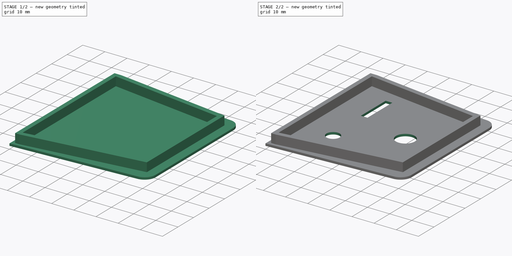
[diagram: build sequence overview — one tinted view per stage of 2, left to right]
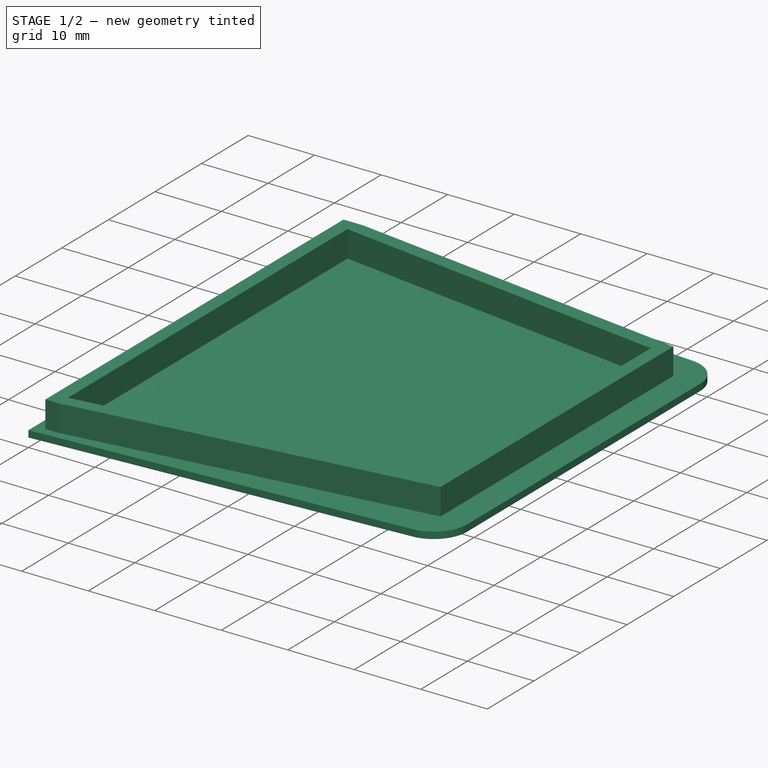
[diagram: stage 1 of 2 — iso view after this stage's code; geometry added in this stage tinted green]
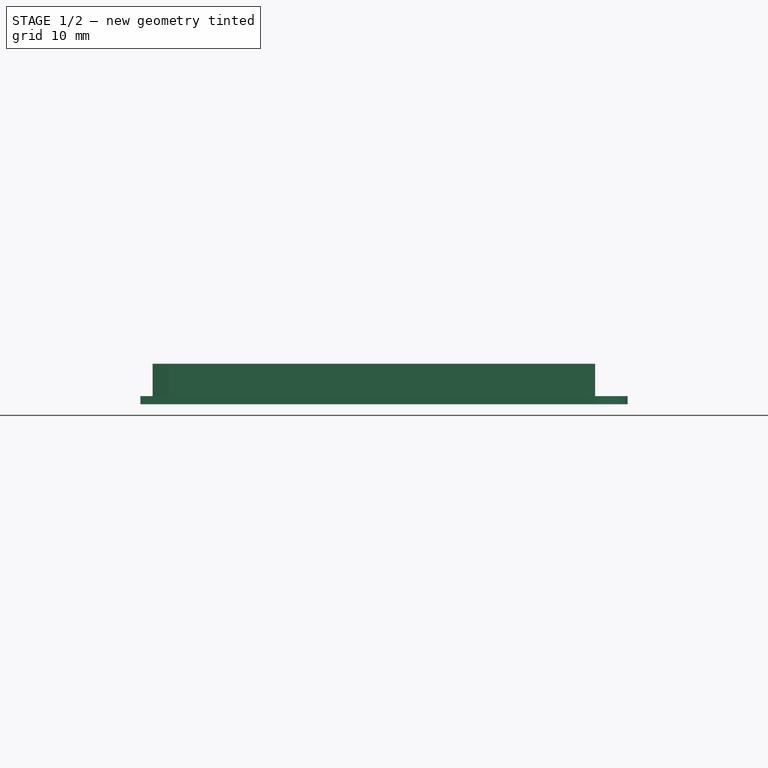
[diagram: stage 1 of 2 — front view after this stage's code; geometry added in this stage tinted green]
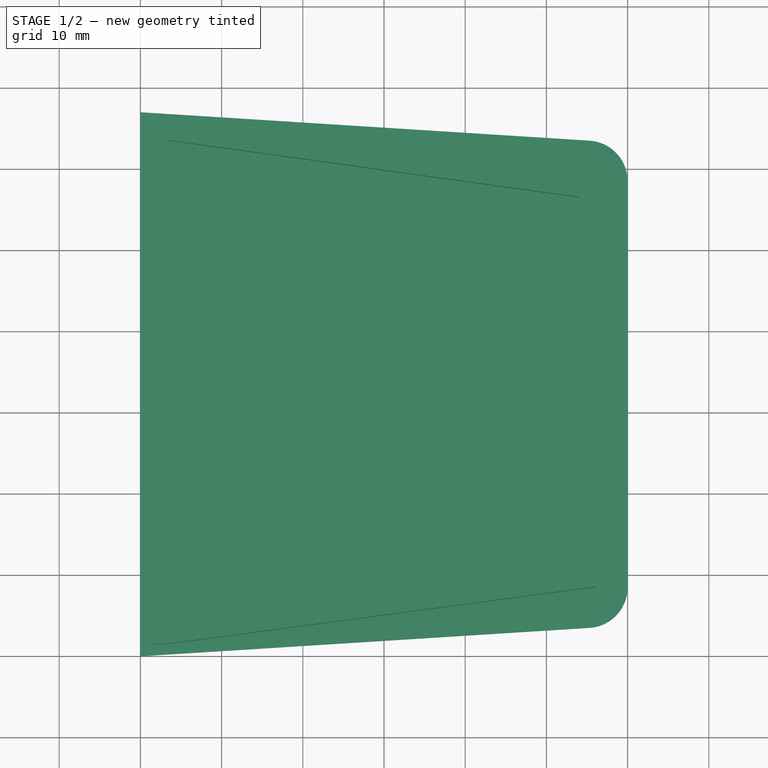
[diagram: stage 1 of 2 — top view after this stage's code; geometry added in this stage tinted green]
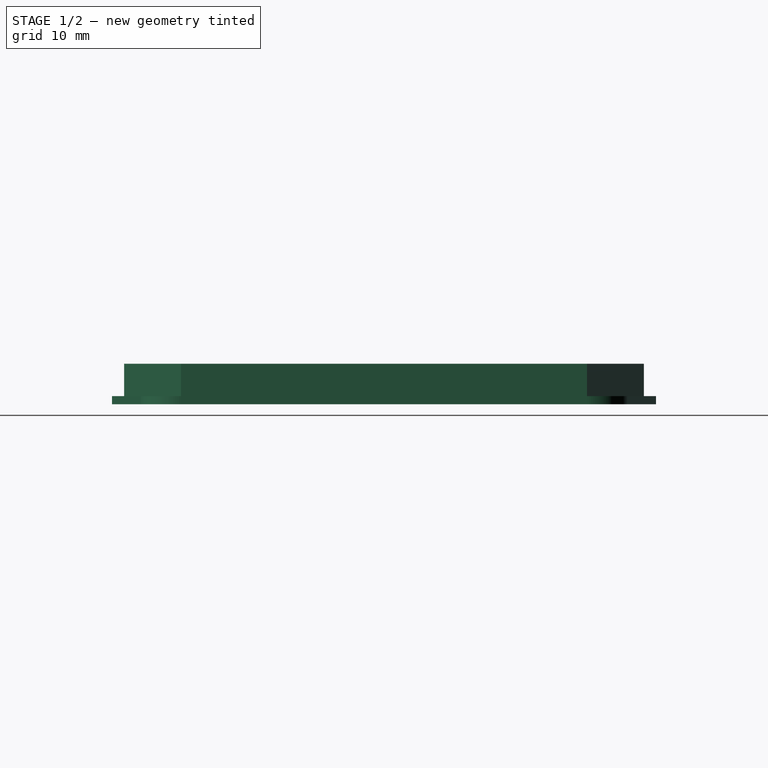
[diagram: stage 1 of 2 — right view after this stage's code; geometry added in this stage tinted green]
FCSTD DOCUMENT  (FreeCAD 2023.1231R38924 (Git))
Label: body-top
License: All rights reserved
LicenseURL: http://en.wikipedia.org/wiki/All_rights_reserved
objects: Sketcher::SketchObject×3, PartDesign::Pad×2, PartDesign::Pocket×1, PartDesign::Body×1
note: 16 computed .brp shape members not serialized (recipe doc carries the construction recipe); baked Part::Feature solids carry a one-line shape summary decoded from their .brp

FEATURE [Sketcher::SketchObject] Sketch
  ArcFitTolerance = 0
  AttachmentSupport = -> [XY_Plane]
  ExternalBSplineMaxDegree = 0
  ExternalBSplineTolerance = 0
  FullyConstrained = true
  InternalTolerance = 1e-06
  InvalidShape = false
  MakeInternals = false
  MapMode = 5
  Support = -> [XY_Plane]
  TreeRank = 0
  ValidateShape = false
  sketch-geometry (6):
    g0: LineSegment StartX=0 StartY=67 StartZ=0 EndX=0 EndY=0 EndZ=0
    g1: LineSegment StartX=0 StartY=0 StartZ=0 EndX=55.3157 EndY=3.5 EndZ=0
    g2: LineSegment StartX=60 StartY=8.49002 StartZ=0 EndX=60 EndY=58.51 EndZ=0
    g3: LineSegment StartX=55.3157 StartY=63.5 StartZ=0 EndX=0 EndY=67 EndZ=0
    g4: ArcOfCircle CenterX=55 CenterY=58.51 CenterZ=0 NormalX=0 NormalY=0 NormalZ=1 AngleXU=0 Radius=5 StartAngle=2e-16 EndAngle=1.50761
    g5: ArcOfCircle CenterX=55 CenterY=8.49002 CenterZ=0 NormalX=0 NormalY=0 NormalZ=1 AngleXU=0 Radius=5 StartAngle=4.77558 EndAngle=6.28319
  constraints (16):
    c: DistanceY(g-1,g0) = 0
    c: Coincident(g1,g0)
    c: Vertical(g0)
    c: Vertical(g2)
    c: DistanceX(g-1,g0) = 0
    c: Coincident(g3,g0)
    c: Distance(g0) = 67
    c: Tangent(g3,g4) = -1.5708
    c: Tangent(g2,g4) = -1.5708
    c: Tangent(g2,g5) = -1.5708
    c: Tangent(g1,g5) = -1.5708
    c: Radius(g4) = 5
    c: Radius(g5) = 5
    c: DistanceY(g1,g3) = 60
    c: DistanceX(g0,g2) = 60
    c: DistanceY(g0,g1) = 3.5
FEATURE [PartDesign::Pad] Pad001
  AddSubType = 0
  AllowMultiFace = false
  AutoTaperInnerAngle = true
  CheckUpToFaceLimits = true
  ClaimChildren = false
  Direction = (0,0,1)
  Fit = 0
  FitJoin = 0
  InnerFit = 0
  InnerFitJoin = 0
  InvalidShape = false
  Length = 1
  Length2 = 100
  NewSolid = false
  Profile = -> Sketch
  Suppress = false
  TaperInnerAngle = 0
  TaperInnerAngleRev = 0
  TreeRank = 0
  Type = 0
  ValidateShape = false
  _ProfileBasedVersion = 0
FEATURE [Sketcher::SketchObject] Sketch001
  ArcFitTolerance = 0
  AttachmentSupport = -> [XY_Plane]
  ExternalBSplineMaxDegree = 0
  ExternalBSplineTolerance = 0
  FullyConstrained = true
  InternalTolerance = 1e-06
  InvalidShape = false
  MakeInternals = false
  MapMode = 5
  Support = -> [XY_Plane]
  TreeRank = 0
  ValidateShape = false
  sketch-geometry (10):
    g0: LineSegment StartX=1.5 StartY=65.5 StartZ=0 EndX=4.5 EndY=65.5 EndZ=0
    g1: LineSegment StartX=3.5 StartY=63.5 StartZ=0 EndX=3.5 EndY=3.5 EndZ=0
    g2: LineSegment StartX=3.5 StartY=1.5 StartZ=0 EndX=1.5 EndY=1.5 EndZ=0
    g3: LineSegment StartX=1.5 StartY=1.5 StartZ=0 EndX=1.5 EndY=65.5 EndZ=0
    g4: LineSegment StartX=54 StartY=56.5 StartZ=0 EndX=54 EndY=10.5 EndZ=0
    g5: LineSegment StartX=56 StartY=8.5 StartZ=0 EndX=56 EndY=58.5 EndZ=0
    g6: LineSegment StartX=4.5 StartY=65.5 StartZ=0 EndX=56 EndY=58.5 EndZ=0
    g7: LineSegment StartX=3.5 StartY=63.5 StartZ=0 EndX=54 EndY=56.5 EndZ=0
    g8: LineSegment StartX=3.5 StartY=1.5 StartZ=0 EndX=56 EndY=8.5 EndZ=0
    g9: LineSegment StartX=3.5 StartY=3.5 StartZ=0 EndX=54 EndY=10.5 EndZ=0
  constraints (30):
    c: Coincident(g2,g3)
    c: Coincident(g3,g0)
    c: Horizontal(g0)
    c: Horizontal(g2)
    c: Vertical(g1)
    c: Vertical(g3)
    c: Distance(g0) = 3
    c: DistanceX(g-1,g2) = 1.5
    c: DistanceY(g-1,g2) = 1.5
    c: Vertical(g4)
    c: Vertical(g5)
    c: DistanceX(g-1,g5) = 56
    c: DistanceY(g-1,g8) = 8.5
    c: DistanceY(g7,g0) = 2
    c: Coincident(g6,g0)
    c: Coincident(g1,g7)
    c: Coincident(g7,g4)
    c: DistanceY(g4,g6) = 2
    c: Distance(g5) = 50
    c: Distance(g3) = 64
    c: Distance(g2) = 2
    c: Coincident(g2,g8)
    c: Coincident(g1,g9)
    c: DistanceY(g2,g1) = 2
    c: Coincident(g9,g4)
    c: DistanceY(g8,g4) = 2
    c: DistanceX(g1,g2) = 0
    c: Coincident(g6,g5)
    c: Coincident(g8,g5)
    c: DistanceX(g4,g5) = 2
FEATURE [PartDesign::Pad] Pad
  AddSubType = 0
  AllowMultiFace = false
  AutoTaperInnerAngle = true
  BaseFeature = -> Pad001
  CheckUpToFaceLimits = true
  ClaimChildren = false
  Direction = (0,0,1)
  Fit = 0
  FitJoin = 0
  InnerFit = 0
  InnerFitJoin = 0
  InvalidShape = false
  Length = 5
  Length2 = 100
  NewSolid = false
  Profile = -> Sketch001
  Suppress = false
  TaperInnerAngle = 0
  TaperInnerAngleRev = 0
  TreeRank = 0
  Type = 0
  ValidateShape = false
  _ProfileBasedVersion = 0
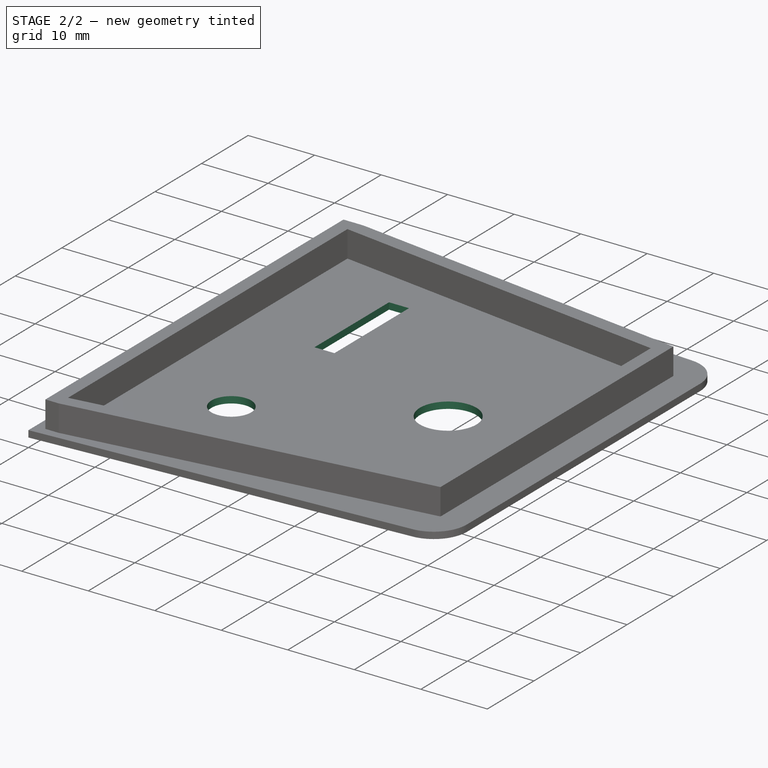
[diagram: stage 2 of 2 — iso view after this stage's code; geometry added in this stage tinted green]
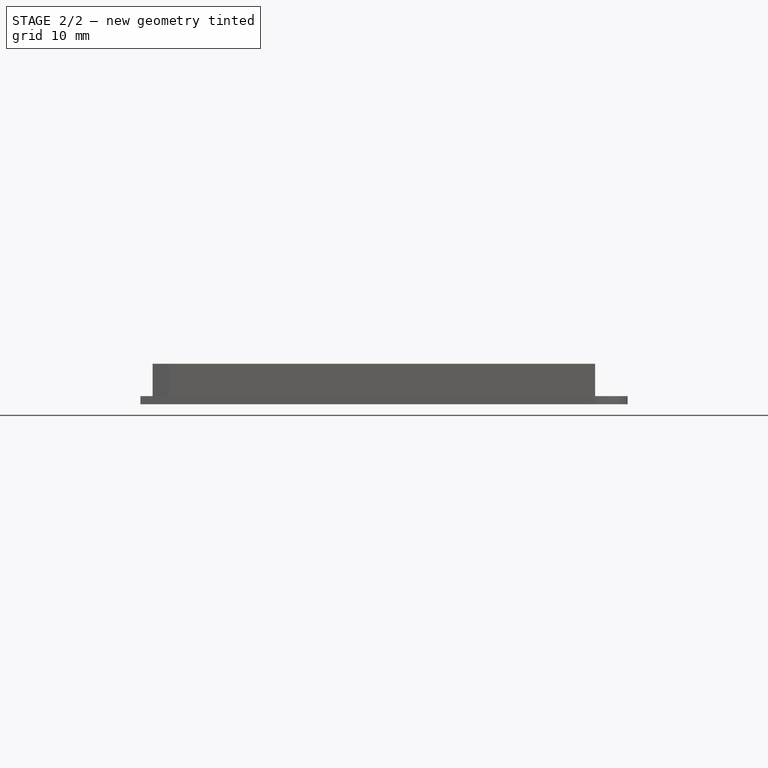
[diagram: stage 2 of 2 — front view after this stage's code; geometry added in this stage tinted green]
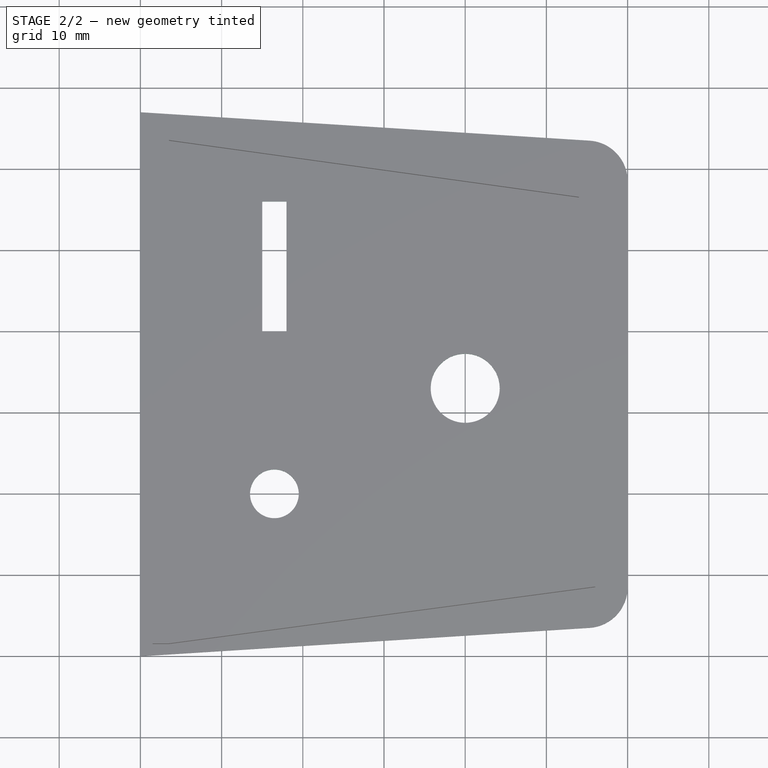
[diagram: stage 2 of 2 — top view after this stage's code; geometry added in this stage tinted green]
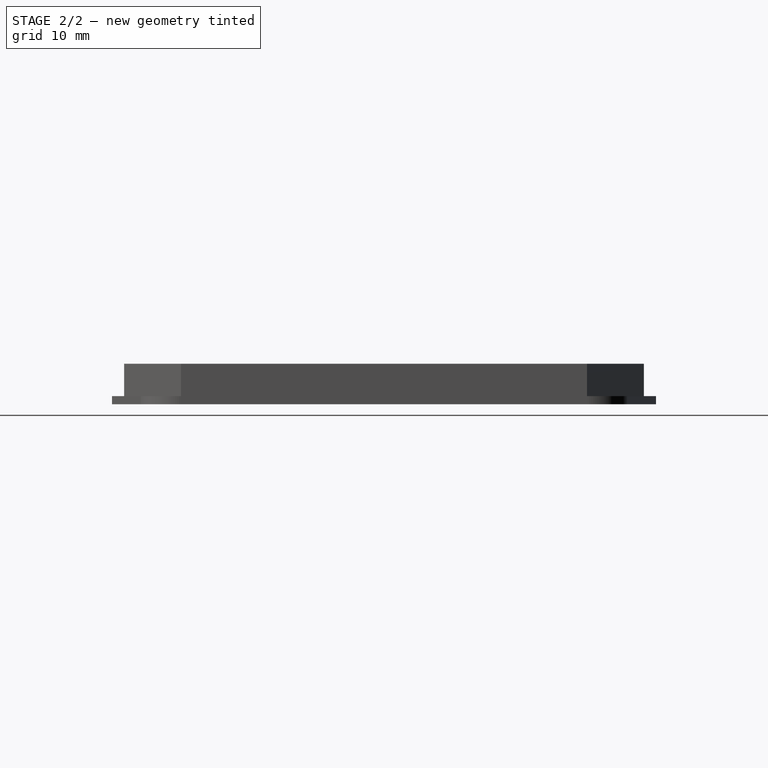
[diagram: stage 2 of 2 — right view after this stage's code; geometry added in this stage tinted green]
FEATURE [Sketcher::SketchObject] Sketch002
  ArcFitTolerance = 0
  AttachmentSupport = -> [XY_Plane]
  ExternalBSplineMaxDegree = 0
  ExternalBSplineTolerance = 0
  FullyConstrained = true
  InternalTolerance = 1e-06
  InvalidShape = false
  MakeInternals = false
  MapMode = 5
  Support = -> [XY_Plane]
  TreeRank = 0
  ValidateShape = false
  sketch-geometry (6):
    g0: Circle CenterX=40 CenterY=33 CenterZ=0 NormalX=0 NormalY=0 NormalZ=1 AngleXU=0 Radius=4.25
    g1: LineSegment StartX=15 StartY=56 StartZ=0 EndX=18 EndY=56 EndZ=0
    g2: LineSegment StartX=18 StartY=56 StartZ=0 EndX=18 EndY=40 EndZ=0
    g3: LineSegment StartX=18 StartY=40 StartZ=0 EndX=15 EndY=40 EndZ=0
    g4: LineSegment StartX=15 StartY=40 StartZ=0 EndX=15 EndY=56 EndZ=0
    g5: Circle CenterX=16.5 CenterY=20 CenterZ=0 NormalX=0 NormalY=0 NormalZ=1 AngleXU=0 Radius=3
  constraints (18):
    c: Coincident(g1,g2)
    c: Coincident(g2,g3)
    c: Coincident(g3,g4)
    c: Coincident(g4,g1)
    c: Horizontal(g1)
    c: Horizontal(g3)
    c: Vertical(g2)
    c: Vertical(g4)
    c: Distance(g2) = 16
    c: Distance(g1) = 3
    c: DistanceX(g-1,g3) = 15
    c: DistanceY(g-1,g3) = 40
    c: DistanceY(g-1,g0) = 33
    c: Diameter(g0) = 8.5
    c: DistanceX(g-1,g0) = 40
    c: Diameter(g5) = 6
    c: DistanceX(g-1,g5) = 16.5
    c: DistanceY(g-1,g5) = 20
FEATURE [PartDesign::Pocket] Pocket
  AddSubType = 1
  AllowMultiFace = false
  AutoTaperInnerAngle = true
  BaseFeature = -> Pad
  CheckUpToFaceLimits = true
  ClaimChildren = false
  Direction = (0,0,-1)
  Fit = 0
  FitJoin = 0
  InnerFit = 0
  InnerFitJoin = 0
  InvalidShape = false
  Length = 10
  Length2 = 100
  Midplane = true
  NewSolid = false
  Profile = -> Sketch002
  Reversed = true
  Suppress = false
  TaperInnerAngle = 0
  TaperInnerAngleRev = 0
  TreeRank = 0
  Type = 0
  ValidateShape = false
  _ProfileBasedVersion = 0
  _Version = 0
FEATURE [PartDesign::Body] Body
  AutoGroupSolids = false
  ClaimAllChildren = false
  ExportMode = 0
  Group = -> [Sketch,Pad001,Sketch001,Pad,Sketch002,Pocket]
  InvalidShape = false
  Origin = -> Origin
  Tip = -> Pocket
  TreeRank = 0
  ValidateShape = false
  _ExportChildren = -> [Pad001,Pad,Pocket]
  _GroupVersion = 1
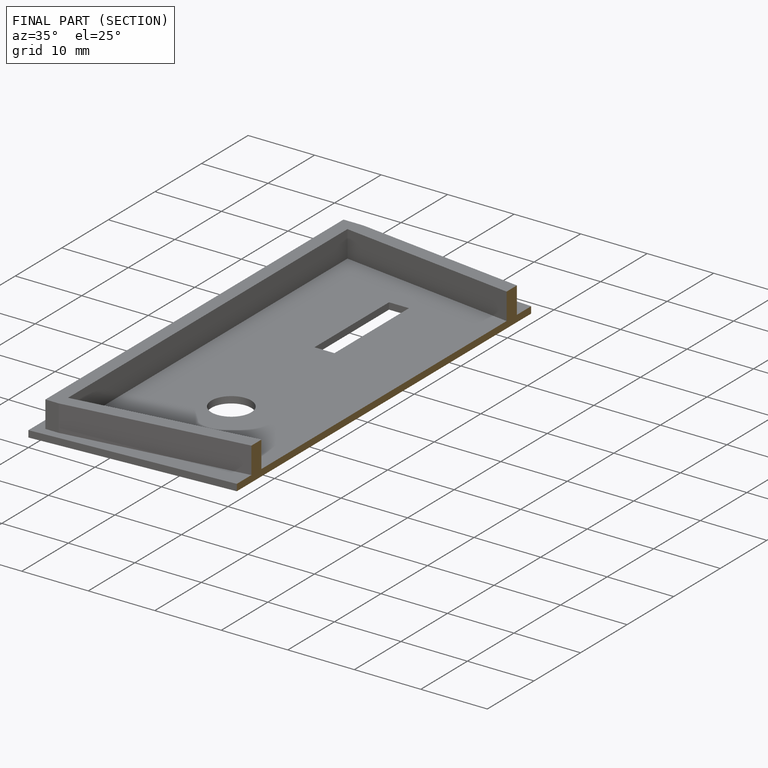
[diagram: finished part — half-section view (interior)]
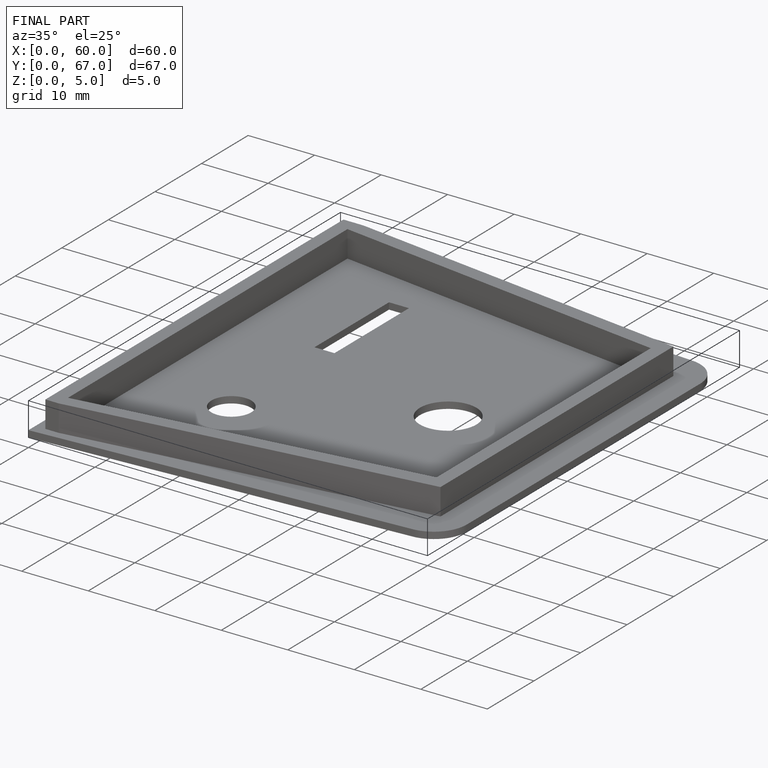
[diagram: finished part — iso view with bounding-box wireframe]
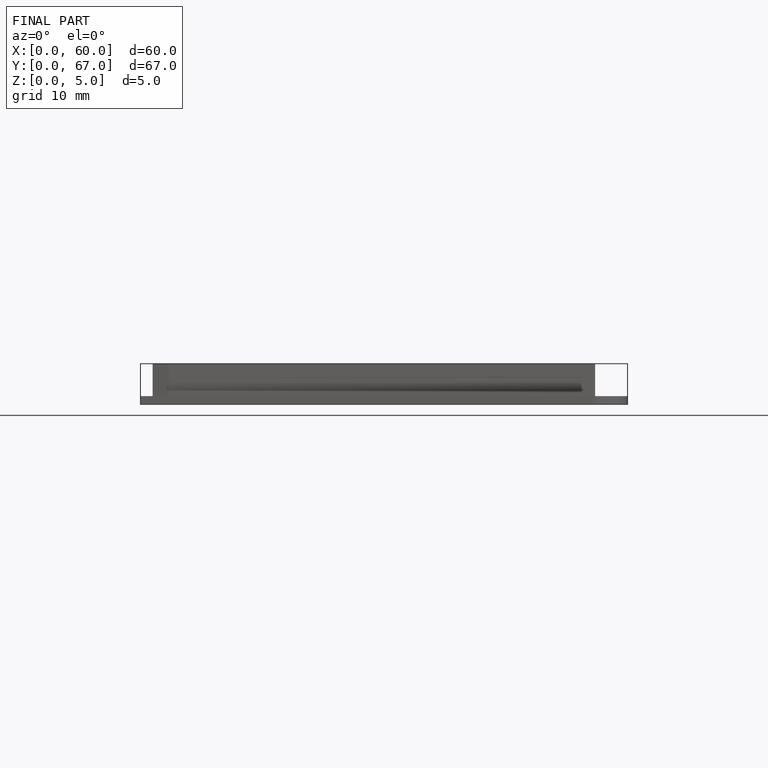
[diagram: finished part — front view with bounding-box wireframe]
